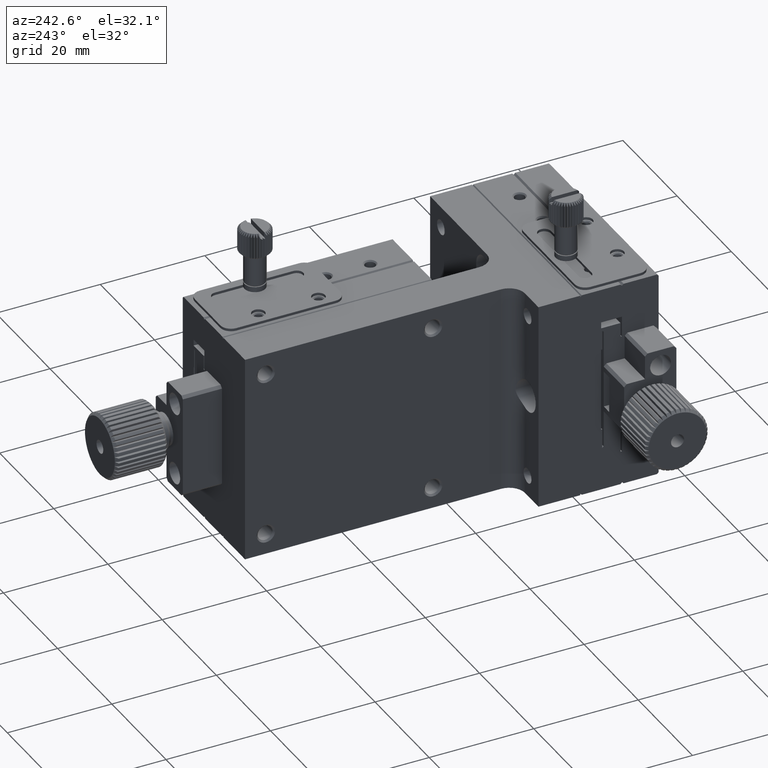
[diagram: clean part render]
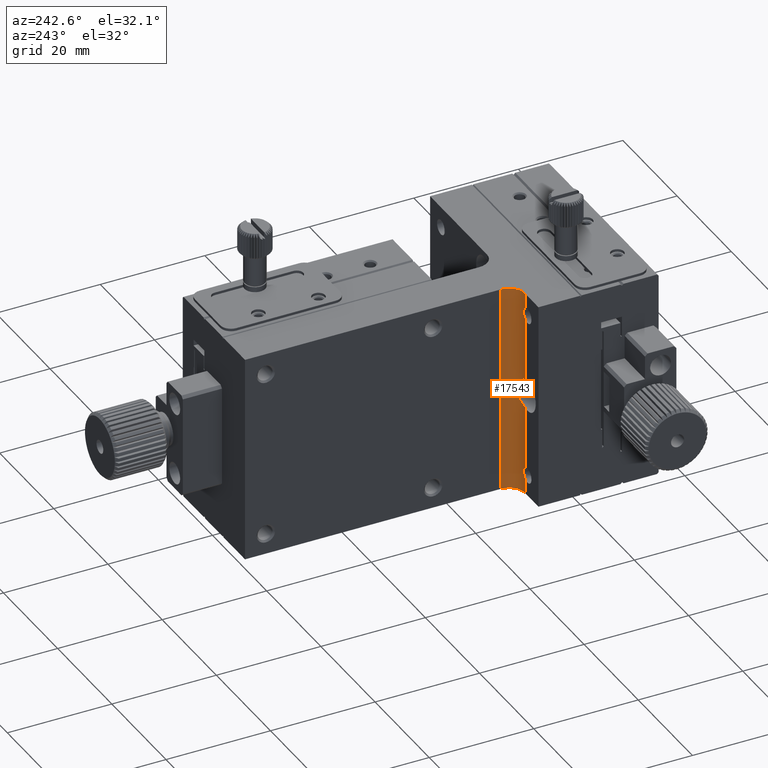
[diagram: same view with one face highlighted and labeled with its STEP entity id]
A machine part, auxiliary view. The second image highlights one B-rep face of the part: STEP entity #17543.
In plain terms, the highlighted cylindrical surface (edge-blend (fillet) strip) has radius 3 mm, axis along (0, 0, 1).
Its self-contained STEP definition (entity closure, byte-faithful):
#168 = DIRECTION ( 'NONE',  ( 1.000000000000000000, -1.156482317317871133E-15, 0.000000000000000000 ) ) ;
#585 = CARTESIAN_POINT ( 'NONE',  ( 6.060221936024837497, 8.191294900948351554, -22.18594025745791498 ) ) ;
#763 = CARTESIAN_POINT ( 'NONE',  ( 6.624474020064375246, 8.470054543796692315, -18.51569336746656091 ) ) ;
#815 = DIRECTION ( 'NONE',  ( -0.000000000000000000, 0.000000000000000000, -1.000000000000000000 ) ) ;
#903 = CARTESIAN_POINT ( 'NONE',  ( 5.000000000000030198, 8.000000000000000000, -2.984802974787681862 ) ) ;
#940 = CARTESIAN_POINT ( 'NONE',  ( 5.150292715080058592, 7.999999999999994671, -22.77529062574816265 ) ) ;
#998 = VERTEX_POINT ( 'NONE', #25824 ) ;
#1070 = CARTESIAN_POINT ( 'NONE',  ( 5.000000000000035527, 8.000000000000000000, -37.01519702521231636 ) ) ;
#1122 = CARTESIAN_POINT ( 'NONE',  ( 5.000000000000030198, 8.000000000000000000, -40.00000000000000000 ) ) ;
#1475 = CARTESIAN_POINT ( 'NONE',  ( 5.000000000000026645, 8.000000000000000000, -22.82842712474618097 ) ) ;
#1798 = EDGE_CURVE ( 'NONE', #16147, #25711, #31985, .T. ) ;
#2105 = EDGE_CURVE ( 'NONE', #19915, #998, #35447, .T. ) ;
#2526 = LINE ( 'NONE', #5407, #33416 ) ;
#3145 = CARTESIAN_POINT ( 'NONE',  ( 5.000000000000026645, 8.000000000000000000, -17.17157287525381903 ) ) ;
#3627 = CARTESIAN_POINT ( 'NONE',  ( 5.700775746418938361, 8.080230229577592738, -22.47609121149130118 ) ) ;
#3941 = CARTESIAN_POINT ( 'NONE',  ( 5.135428948751170175, 7.999999999999998224, -4.881795384557568340 ) ) ;
#5200 = CARTESIAN_POINT ( 'NONE',  ( 5.415463398322370558, 8.028848370315875727, -35.81044345339505952 ) ) ;
#5385 = CARTESIAN_POINT ( 'NONE',  ( 5.425066807173751116, 8.030266305877558963, -36.18706209636621907 ) ) ;
#5407 = CARTESIAN_POINT ( 'NONE',  ( 8.000000000000030198, 10.99999999999999645, -40.00000000000000000 ) ) ;
#5613 = CARTESIAN_POINT ( 'NONE',  ( 6.902054401653884952, 8.679255665987685830, -19.22411200944667442 ) ) ;
#5966 = CARTESIAN_POINT ( 'NONE',  ( 6.938874009136101861, 8.710500759236559531, -20.62243029942014161 ) ) ;
#6078 = DIRECTION ( 'NONE',  ( -0.000000000000000000, -0.000000000000000000, -1.000000000000000000 ) ) ;
#6149 = CARTESIAN_POINT ( 'NONE',  ( 6.269513539203217967, 8.279479781209719391, -21.96777984800799643 ) ) ;
#6346 = DIRECTION ( 'NONE',  ( 0.000000000000000000, 0.000000000000000000, 1.000000000000000000 ) ) ;
#6470 = CARTESIAN_POINT ( 'NONE',  ( 5.350821334333319079, 8.020358840551457646, -3.536562996184331009 ) ) ;
#6514 = CARTESIAN_POINT ( 'NONE',  ( 5.000000000000031974, 8.000000000000000000, -34.98480297478769074 ) ) ;
#6931 = VERTEX_POINT ( 'NONE', #1475 ) ;
#7228 = EDGE_CURVE ( 'NONE', #16147, #19915, #2526, .T. ) ;
#7845 = DIRECTION ( 'NONE',  ( -0.000000000000000000, -0.000000000000000000, -1.000000000000000000 ) ) ;
#8664 = CARTESIAN_POINT ( 'NONE',  ( 5.000000000000030198, 8.000000000000000000, -5.015197025212317250 ) ) ;
#8694 = CARTESIAN_POINT ( 'NONE',  ( 6.066914866722716404, 8.184463707108875496, -17.80366905895773755 ) ) ;
#8825 = LINE ( 'NONE', #30568, #31201 ) ;
#8862 = EDGE_CURVE ( 'NONE', #998, #22394, #8825, .T. ) ;
#8928 = CARTESIAN_POINT ( 'NONE',  ( 5.000000000000030198, 8.000000000000000000, -40.00000000000000000 ) ) ;
#9052 = CARTESIAN_POINT ( 'NONE',  ( 5.574383724464653689, 8.044389185550452126, -17.42758429545305177 ) ) ;
#10083 = EDGE_CURVE ( 'NONE', #6931, #25680, #28962, .T. ) ;
#10749 = CARTESIAN_POINT ( 'NONE',  ( 5.000000000000030198, 11.00000000000000000, 0.000000000000000000 ) ) ;
#11050 = CARTESIAN_POINT ( 'NONE',  ( 8.000000000000030198, 10.99999999999999822, -40.00000000000000000 ) ) ;
#11731 = CARTESIAN_POINT ( 'NONE',  ( 5.127656795403514600, 8.002255827186434800, -3.123763570666030720 ) ) ;
#11943 = CARTESIAN_POINT ( 'NONE',  ( 5.000000000000026645, 8.000000000000000000, -22.82842712474618097 ) ) ;
#12084 = CARTESIAN_POINT ( 'NONE',  ( 5.424966460465524776, 8.030251945261822399, -3.905706602830934404 ) ) ;
#12298 = CARTESIAN_POINT ( 'NONE',  ( 8.000000000000030198, 10.99999999999999822, 0.000000000000000000 ) ) ;
#13281 = EDGE_CURVE ( 'NONE', #25680, #29145, #16775, .T. ) ;
#14288 = CARTESIAN_POINT ( 'NONE',  ( 6.364801013706937738, 8.326594350190552163, -21.85209523697201206 ) ) ;
#14650 = CARTESIAN_POINT ( 'NONE',  ( 5.571287315256920891, 8.051621716432871168, -22.56038113310402338 ) ) ;
#14851 = CYLINDRICAL_SURFACE ( 'NONE', #32342, 3.000000000000000888 ) ;
#15724 = ORIENTED_EDGE ( 'NONE', *, *, #2105, .F. ) ;
#15780 = VERTEX_POINT ( 'NONE', #3145 ) ;
#15952 = EDGE_CURVE ( 'NONE', #29145, #25711, #34080, .T. ) ;
#16147 = VERTEX_POINT ( 'NONE', #11050 ) ;
#16220 = CARTESIAN_POINT ( 'NONE',  ( 5.378278216602089046, 8.023885514170439492, -35.62607825151341956 ) ) ;
#16633 = CARTESIAN_POINT ( 'NONE',  ( 5.945131687741585402, 8.149935395141316263, -22.28913270575887040 ) ) ;
#16703 = ORIENTED_EDGE ( 'NONE', *, *, #13281, .F. ) ;
#16775 = B_SPLINE_CURVE_WITH_KNOTS ( 'NONE', 3,
 ( #21636, #32551, #30047, #18917, #29872, #35449, #16220, #5200, #32733, #5385, #20008, #19646, #30939, #1070 ),
 .UNSPECIFIED., .F., .F.,
 ( 4, 2, 2, 2, 2, 2, 4 ),
 ( 0.000000000000000000, 0.0002810557815738205811, 0.0005621115631476411622, 0.0008431673447214617974, 0.001124223126295282324, 0.001686334689442923595, 0.002248446252590564649 ),
 .UNSPECIFIED. ) ;
#16822 = EDGE_CURVE ( 'NONE', #22394, #32623, #21600, .T. ) ;
#16984 = CARTESIAN_POINT ( 'NONE',  ( 6.902068805547814989, 8.679287851067998716, -20.77549464649903399 ) ) ;
#17310 = CARTESIAN_POINT ( 'NONE',  ( 5.232659777237083532, 8.008572947386745966, -3.278924413189926224 ) ) ;
#17342 = CARTESIAN_POINT ( 'NONE',  ( 6.987189302511392697, 8.752306015370121983, -19.68221813293347111 ) ) ;
#17487 = CARTESIAN_POINT ( 'NONE',  ( 5.415463398322371447, 8.028848370315875727, -3.810443453395047531 ) ) ;
#17543 = ADVANCED_FACE ( 'NONE', ( #20613 ), #14851, .F. ) ;
#17793 = EDGE_LOOP ( 'NONE', ( #22439, #31482, #23575, #15724, #29806, #29672, #27651, #16703, #24043, #23934 ) ) ;
#18917 = CARTESIAN_POINT ( 'NONE',  ( 5.232659777237080867, 8.008572947386749519, -35.27892441318992667 ) ) ;
#19325 = CARTESIAN_POINT ( 'NONE',  ( 6.750879551152005220, 8.562571854232874813, -21.20640068937503386 ) ) ;
#19622 = CARTESIAN_POINT ( 'NONE',  ( 5.000000000000030198, 11.00000000000000000, -40.00000000000000000 ) ) ;
#19646 = CARTESIAN_POINT ( 'NONE',  ( 5.242769586996534947, 8.008958382997358072, -36.72195966846266657 ) ) ;
#19874 = CARTESIAN_POINT ( 'NONE',  ( 7.000013587697942796, 8.763944175706564366, -20.15776341023080320 ) ) ;
#19915 = VERTEX_POINT ( 'NONE', #12298 ) ;
#20008 = CARTESIAN_POINT ( 'NONE',  ( 5.387116102164066334, 8.024196217749302917, -36.37631227506876996 ) ) ;
#20061 = CARTESIAN_POINT ( 'NONE',  ( 6.759288587583176522, 8.566984482498334330, -18.78261994980718796 ) ) ;
#20290 = LINE ( 'NONE', #8928, #29085 ) ;
#20382 = CARTESIAN_POINT ( 'NONE',  ( 5.425066807173751116, 8.030266305877558963, -4.187062096366215513 ) ) ;
#20613 = FACE_OUTER_BOUND ( 'NONE', #17793, .T. ) ;
#20904 = DIRECTION ( 'NONE',  ( -0.000000000000000000, 0.000000000000000000, -1.000000000000000000 ) ) ;
#21040 = VECTOR ( 'NONE', #20904, 1000.000000000000000 ) ;
#21240 = B_SPLINE_CURVE_WITH_KNOTS ( 'NONE', 3,
 ( #33316, #22951, #9052, #8694, #30620, #763, #20061, #5613, #30982, #17342, #33493, #19874, #28301, #5966, #16984, #33140, #19325, #27939, #30796, #14288, #6149, #585, #16633, #3627, #14650, #25625, #940, #11943 ),
 .UNSPECIFIED., .F., .F.,
 ( 4, 2, 2, 2, 2, 2, 2, 2, 2, 2, 2, 2, 2, 4 ),
 ( 1.734723475976806902E-18, 0.0009401447641671124714, 0.001880289528334223208, 0.002820434292501334053, 0.003290506674584889150, 0.003760579056668444681, 0.004230651438752000212, 0.004700723820835555310, 0.005170796202919110407, 0.005640868585002666372, 0.006110940967086221469, 0.006581013349169776566, 0.007051085731253332531, 0.007521158113336887628 ),
 .UNSPECIFIED. ) ;
#21600 = B_SPLINE_CURVE_WITH_KNOTS ( 'NONE', 3,
 ( #903, #23091, #11731, #17310, #28270, #6470, #33989, #17487, #12084, #20382, #31294, #28619, #3941, #8664 ),
 .UNSPECIFIED., .F., .F.,
 ( 4, 2, 2, 2, 2, 2, 4 ),
 ( 1.226634733346699349E-18, 0.0002810557815738229121, 0.0005621115631476445232, 0.0008431673447214662427, 0.001124223126295287962, 0.001686334689442931401, 0.002248446252590574623 ),
 .UNSPECIFIED. ) ;
#21636 = CARTESIAN_POINT ( 'NONE',  ( 5.000000000000031974, 8.000000000000000000, -34.98480297478769074 ) ) ;
#21938 = DIRECTION ( 'NONE',  ( 1.000000000000000000, -1.156482317317871133E-15, 0.000000000000000000 ) ) ;
#22180 = DIRECTION ( 'NONE',  ( -0.000000000000000000, 0.000000000000000000, -1.000000000000000000 ) ) ;
#22394 = VERTEX_POINT ( 'NONE', #25980 ) ;
#22439 = ORIENTED_EDGE ( 'NONE', *, *, #23116, .F. ) ;
#22865 = AXIS2_PLACEMENT_3D ( 'NONE', #19622, #6078, #168 ) ;
#22951 = CARTESIAN_POINT ( 'NONE',  ( 5.300865063321500870, 8.000000000000001776, -17.27794473850219248 ) ) ;
#23091 = CARTESIAN_POINT ( 'NONE',  ( 5.067723236697295519, 7.999999999999998224, -3.051512426268888856 ) ) ;
#23116 = EDGE_CURVE ( 'NONE', #32623, #15780, #20290, .T. ) ;
#23575 = ORIENTED_EDGE ( 'NONE', *, *, #8862, .F. ) ;
#23934 = ORIENTED_EDGE ( 'NONE', *, *, #27106, .F. ) ;
#24043 = ORIENTED_EDGE ( 'NONE', *, *, #10083, .F. ) ;
#25071 = DIRECTION ( 'NONE',  ( 0.000000000000000000, 0.000000000000000000, 1.000000000000000000 ) ) ;
#25501 = CARTESIAN_POINT ( 'NONE',  ( 5.000000000000030198, 8.000000000000000000, -40.00000000000000000 ) ) ;
#25625 = CARTESIAN_POINT ( 'NONE',  ( 5.296332357959861348, 8.011440006757498011, -22.70998483234658494 ) ) ;
#25680 = VERTEX_POINT ( 'NONE', #6514 ) ;
#25711 = VERTEX_POINT ( 'NONE', #1122 ) ;
#25824 = CARTESIAN_POINT ( 'NONE',  ( 5.000000000000030198, 8.000000000000000000, 0.000000000000000000 ) ) ;
#25980 = CARTESIAN_POINT ( 'NONE',  ( 5.000000000000030198, 8.000000000000000000, -2.984802974787681862 ) ) ;
#26414 = CARTESIAN_POINT ( 'NONE',  ( 5.000000000000035527, 8.000000000000000000, -37.01519702521231636 ) ) ;
#27106 = EDGE_CURVE ( 'NONE', #15780, #6931, #21240, .T. ) ;
#27651 = ORIENTED_EDGE ( 'NONE', *, *, #15952, .F. ) ;
#27939 = CARTESIAN_POINT ( 'NONE',  ( 6.616034343802193796, 8.471152798591456090, -21.47617927106372449 ) ) ;
#28193 = VECTOR ( 'NONE', #815, 1000.000000000000000 ) ;
#28270 = CARTESIAN_POINT ( 'NONE',  ( 5.278092866170879027, 8.012693285668824217, -3.362841652931707781 ) ) ;
#28301 = CARTESIAN_POINT ( 'NONE',  ( 6.987624373339075490, 8.752693045605848710, -20.31384792980401599 ) ) ;
#28322 = DIRECTION ( 'NONE',  ( 1.000000000000000000, 0.000000000000000000, 0.000000000000000000 ) ) ;
#28525 = DIRECTION ( 'NONE',  ( -0.000000000000000000, 0.000000000000000000, -1.000000000000000000 ) ) ;
#28619 = CARTESIAN_POINT ( 'NONE',  ( 5.242769586996531395, 8.008958382997358072, -4.721959668462667459 ) ) ;
#28962 = LINE ( 'NONE', #29314, #21040 ) ;
#29085 = VECTOR ( 'NONE', #28525, 1000.000000000000000 ) ;
#29145 = VERTEX_POINT ( 'NONE', #26414 ) ;
#29314 = CARTESIAN_POINT ( 'NONE',  ( 5.000000000000030198, 8.000000000000000000, -40.00000000000000000 ) ) ;
#29672 = ORIENTED_EDGE ( 'NONE', *, *, #1798, .T. ) ;
#29806 = ORIENTED_EDGE ( 'NONE', *, *, #7228, .F. ) ;
#29872 = CARTESIAN_POINT ( 'NONE',  ( 5.278092866170880804, 8.012693285668827770, -35.36284165293172066 ) ) ;
#29891 = CARTESIAN_POINT ( 'NONE',  ( 5.000000000000030198, 8.000000000000000000, -5.015197025212317250 ) ) ;
#30047 = CARTESIAN_POINT ( 'NONE',  ( 5.127656795403514600, 8.002255827186433024, -35.12376357066602850 ) ) ;
#30568 = CARTESIAN_POINT ( 'NONE',  ( 5.000000000000030198, 8.000000000000000000, -40.00000000000000000 ) ) ;
#30620 = CARTESIAN_POINT ( 'NONE',  ( 6.276349577572697847, 8.277781858656833691, -18.02281445937407156 ) ) ;
#30796 = CARTESIAN_POINT ( 'NONE',  ( 6.537898700766960225, 8.422278688137936342, -21.60673917792811949 ) ) ;
#30939 = CARTESIAN_POINT ( 'NONE',  ( 5.135428948751177280, 8.000000000000000000, -36.88179538455757012 ) ) ;
#30982 = CARTESIAN_POINT ( 'NONE',  ( 6.938185673166424650, 8.709915750700540471, -19.37442011375496165 ) ) ;
#31201 = VECTOR ( 'NONE', #22180, 1000.000000000000000 ) ;
#31294 = CARTESIAN_POINT ( 'NONE',  ( 5.387116102164065445, 8.024196217749302917, -4.376312275068755753 ) ) ;
#31482 = ORIENTED_EDGE ( 'NONE', *, *, #16822, .F. ) ;
#31985 = CIRCLE ( 'NONE', #22865, 3.000000000000000888 ) ;
#32342 = AXIS2_PLACEMENT_3D ( 'NONE', #34224, #6346, #28322 ) ;
#32551 = CARTESIAN_POINT ( 'NONE',  ( 5.067723236697297295, 8.000000000000000000, -35.05151242626889996 ) ) ;
#32623 = VERTEX_POINT ( 'NONE', #29891 ) ;
#32733 = CARTESIAN_POINT ( 'NONE',  ( 5.424966460465524776, 8.030251945261822399, -35.90570660283094639 ) ) ;
#33140 = CARTESIAN_POINT ( 'NONE',  ( 6.808147922671349939, 8.605386939612591490, -21.06663046238092818 ) ) ;
#33316 = CARTESIAN_POINT ( 'NONE',  ( 5.000000000000026645, 8.000000000000000000, -17.17157287525381903 ) ) ;
#33416 = VECTOR ( 'NONE', #25071, 1000.000000000000000 ) ;
#33493 = CARTESIAN_POINT ( 'NONE',  ( 6.999986390084820265, 8.763919849422100228, -19.84172024991870131 ) ) ;
#33989 = CARTESIAN_POINT ( 'NONE',  ( 5.378278216602087269, 8.023885514170439492, -3.626078251513399131 ) ) ;
#34080 = LINE ( 'NONE', #25501, #28193 ) ;
#34224 = CARTESIAN_POINT ( 'NONE',  ( 5.000000000000030198, 11.00000000000000000, -40.00000000000000000 ) ) ;
#34284 = AXIS2_PLACEMENT_3D ( 'NONE', #10749, #7845, #21938 ) ;
#35447 = CIRCLE ( 'NONE', #34284, 3.000000000000000888 ) ;
#35449 = CARTESIAN_POINT ( 'NONE',  ( 5.350821334333319079, 8.020358840551459423, -35.53656299618434389 ) ) ;